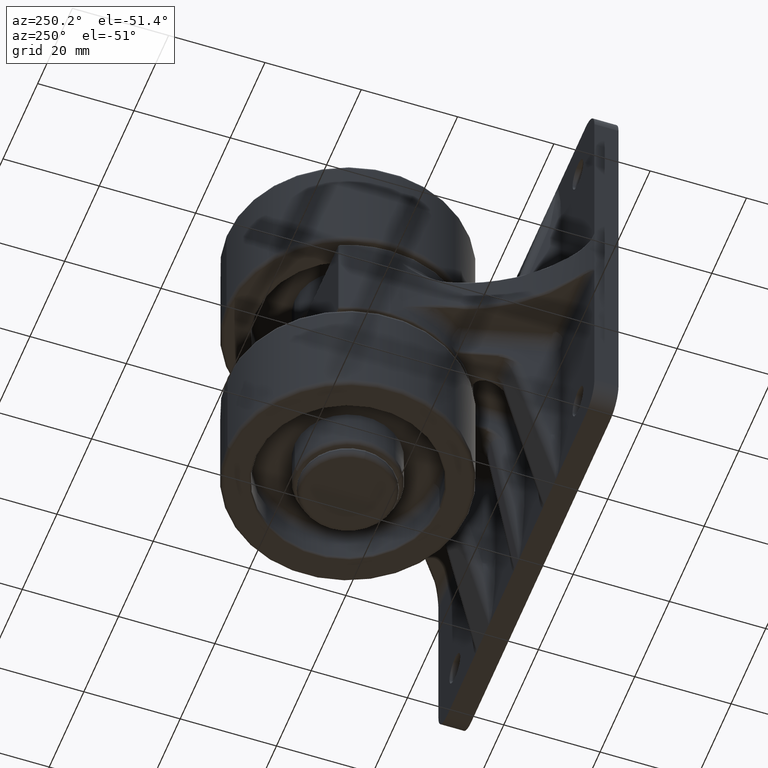
[diagram: clean part render]
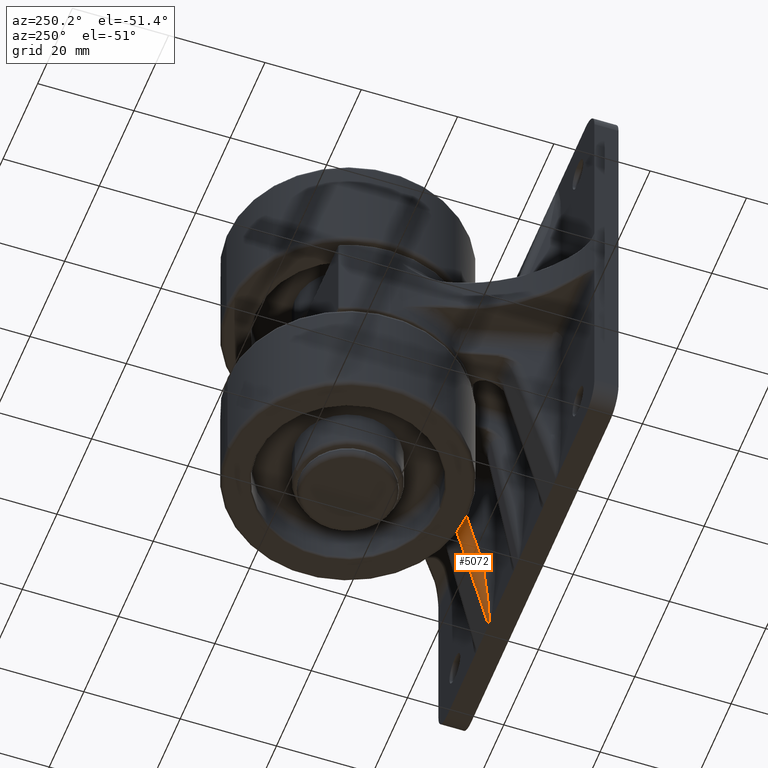
[diagram: same view with one face highlighted and labeled with its STEP entity id]
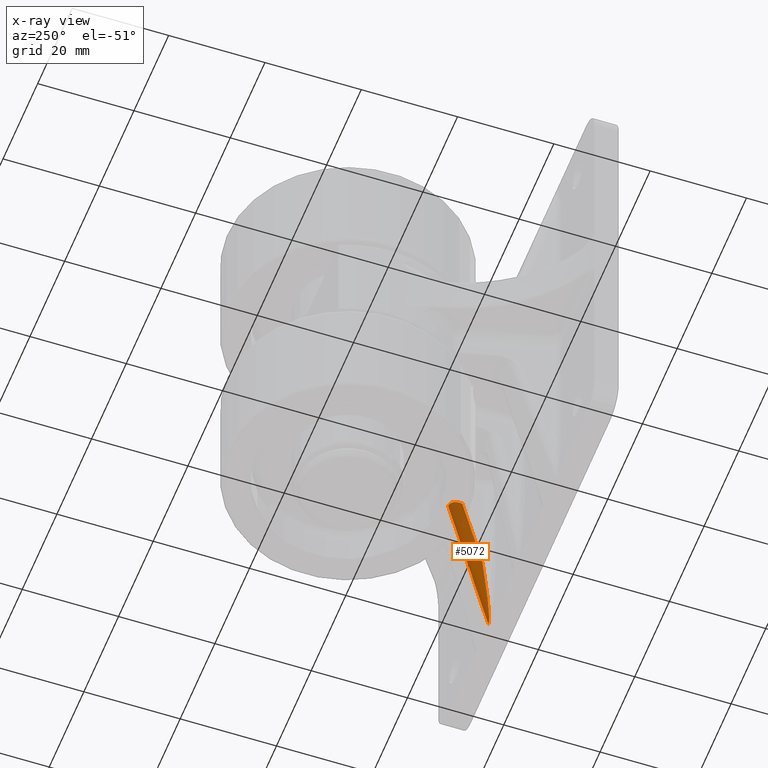
[diagram: x-ray of the same camera — body ghosted, the highlighted face saturated]
A machine part, auxiliary view. The second image highlights one B-rep face of the part: STEP entity #5072.
The next image is the same camera in x-ray: the body ghosted, the highlighted face saturated — about 22% of this face is hidden behind the body in this view.
In plain terms, the highlighted cylindrical surface (edge-blend (fillet) strip) has radius 2 mm, axis along (0, -0.2425, -0.9701).
Its self-contained STEP definition (entity closure, byte-faithful):
#46 = VERTEX_POINT ( 'NONE', #3412 ) ;
#80 = VERTEX_POINT ( 'NONE', #12344 ) ;
#260 = CARTESIAN_POINT ( 'NONE',  ( 12.00000000000000000, -28.81155281280885200, -31.00000000000000000 ) ) ;
#896 = ORIENTED_EDGE ( 'NONE', *, *, #14945, .F. ) ;
#897 = CARTESIAN_POINT ( 'NONE',  ( 28.75378874876470200, -33.00000000000000000, -31.00000000000000000 ) ) ;
#1011 = EDGE_CURVE ( 'NONE', #8094, #80, #3791, .T. ) ;
#1081 =( BOUNDED_CURVE ( )  B_SPLINE_CURVE ( 3, ( #4671, #14003, #8624, #897 ),
 .UNSPECIFIED., .F., .F. ) 
 B_SPLINE_CURVE_WITH_KNOTS ( ( 4, 4 ),
 ( 0.0000000000000000000, 1.570796326794896600 ),
 .UNSPECIFIED. ) 
 CURVE ( )  GEOMETRIC_REPRESENTATION_ITEM ( )  RATIONAL_B_SPLINE_CURVE ( ( 1.000000000000000000, 0.8047378541243649400, 0.8047378541243649400, 1.000000000000000000 ) ) 
 REPRESENTATION_ITEM ( '' )  );
#1167 = CARTESIAN_POINT ( 'NONE',  ( 44.51492874992734300, -36.94028500029065000, -31.00000000000000000 ) ) ;
#1209 = DIRECTION ( 'NONE',  ( 0.2425356250363329700, 0.9701425001453318800, 0.0000000000000000000 ) ) ;
#1545 = VECTOR ( 'NONE', #16848, 1000.000000000000100 ) ;
#1885 = CYLINDRICAL_SURFACE ( 'NONE', #16747, 1.999999999999999600 ) ;
#2584 = CARTESIAN_POINT ( 'NONE',  ( 11.27239312489100000, -26.56809828122275300, -28.99999999999999600 ) ) ;
#3412 = CARTESIAN_POINT ( 'NONE',  ( 11.27239312489100000, -26.56809828122275300, -28.99999999999999600 ) ) ;
#3791 = LINE ( 'NONE', #1167, #10403 ) ;
#4643 = CARTESIAN_POINT ( 'NONE',  ( 8.514928749927340900, -27.94028500029064700, -28.99999999999999600 ) ) ;
#4671 = CARTESIAN_POINT ( 'NONE',  ( 44.76114000116265100, -34.94028500029065000, -28.99999999999999600 ) ) ;
#4852 = ORIENTED_EDGE ( 'NONE', *, *, #16552, .T. ) ;
#4907 =( BOUNDED_CURVE ( )  B_SPLINE_CURVE ( 3, ( #7715, #10365, #10478, #2584 ),
 .UNSPECIFIED., .F., .F. ) 
 B_SPLINE_CURVE_WITH_KNOTS ( ( 4, 4 ),
 ( 1.570796326794896600, 3.141592653589793100 ),
 .UNSPECIFIED. ) 
 CURVE ( )  GEOMETRIC_REPRESENTATION_ITEM ( )  RATIONAL_B_SPLINE_CURVE ( ( 1.000000000000000000, 0.8047378541243649400, 0.8047378541243649400, 1.000000000000000000 ) ) 
 REPRESENTATION_ITEM ( '' )  );
#5072 = ADVANCED_FACE ( 'NONE', ( #16445 ), #1885, .T. ) ;
#6339 = CARTESIAN_POINT ( 'NONE',  ( 44.76114000116265100, -34.94028500029065000, -28.99999999999999600 ) ) ;
#7347 = CARTESIAN_POINT ( 'NONE',  ( 9.000000000000000000, -26.00000000000000000, -28.99999999999999600 ) ) ;
#7715 = CARTESIAN_POINT ( 'NONE',  ( 12.00000000000000000, -28.81155281280885200, -31.00000000000000000 ) ) ;
#8094 = VERTEX_POINT ( 'NONE', #260 ) ;
#8624 = CARTESIAN_POINT ( 'NONE',  ( 38.13067801474948500, -34.13659263830118100, -30.99999999999999600 ) ) ;
#8796 = DIRECTION ( 'NONE',  ( 0.9701425001453318800, -0.2425356250363329700, -0.0000000000000000000 ) ) ;
#9589 = EDGE_LOOP ( 'NONE', ( #17015, #11340, #896, #4852 ) ) ;
#10365 = CARTESIAN_POINT ( 'NONE',  ( 11.57377776063705500, -27.49736757477310100, -30.99999999999999600 ) ) ;
#10403 = VECTOR ( 'NONE', #8796, 1000.000000000000100 ) ;
#10478 = CARTESIAN_POINT ( 'NONE',  ( 11.27239312489100200, -26.56809828122277000, -30.17157287525381200 ) ) ;
#11340 = ORIENTED_EDGE ( 'NONE', *, *, #11751, .T. ) ;
#11751 = EDGE_CURVE ( 'NONE', #8094, #46, #4907, .T. ) ;
#12344 = CARTESIAN_POINT ( 'NONE',  ( 28.75378874876470200, -33.00000000000000000, -31.00000000000000000 ) ) ;
#13038 = DIRECTION ( 'NONE',  ( 0.9701425001453319900, -0.2425356250363330000, 0.0000000000000000000 ) ) ;
#14003 = CARTESIAN_POINT ( 'NONE',  ( 44.76114000116268000, -34.94028500029066500, -30.17157287525381200 ) ) ;
#14227 = VERTEX_POINT ( 'NONE', #6339 ) ;
#14945 = EDGE_CURVE ( 'NONE', #14227, #46, #15221, .T. ) ;
#15221 = LINE ( 'NONE', #7347, #1545 ) ;
#16445 = FACE_OUTER_BOUND ( 'NONE', #9589, .T. ) ;
#16552 = EDGE_CURVE ( 'NONE', #14227, #80, #1081, .T. ) ;
#16747 = AXIS2_PLACEMENT_3D ( 'NONE', #4643, #13038, #1209 ) ;
#16848 = DIRECTION ( 'NONE',  ( -0.9701425001453318800, 0.2425356250363329700, 0.0000000000000000000 ) ) ;
#17015 = ORIENTED_EDGE ( 'NONE', *, *, #1011, .F. ) ;